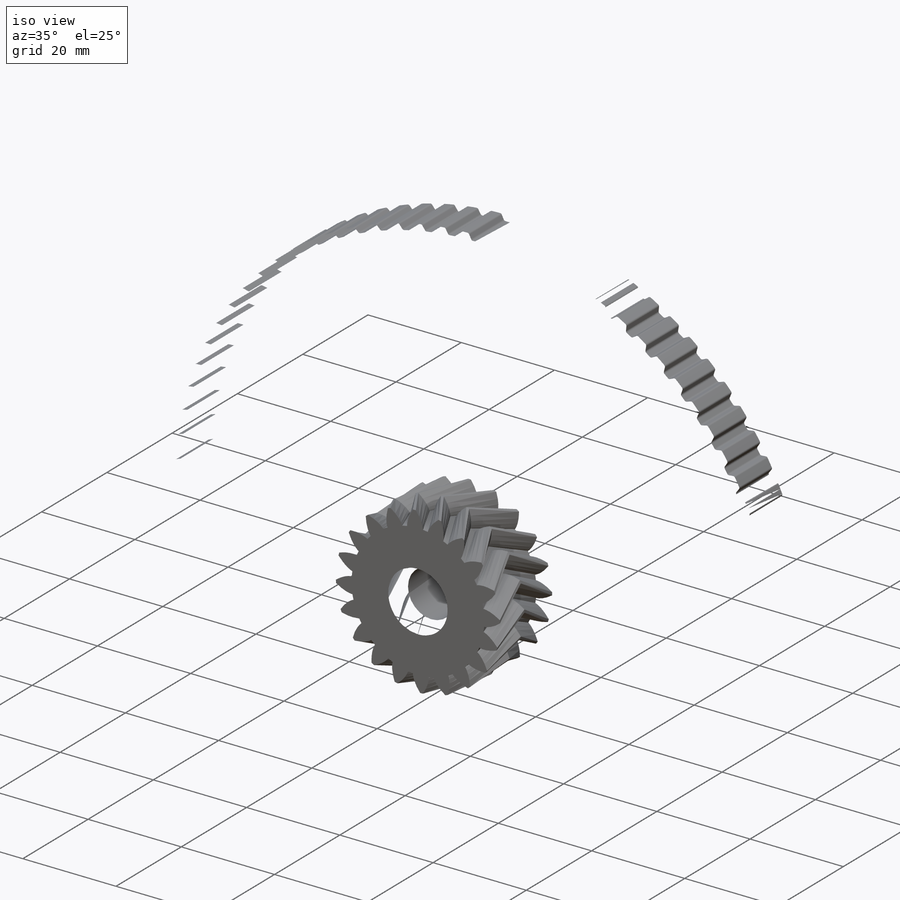
[diagram: iso view]
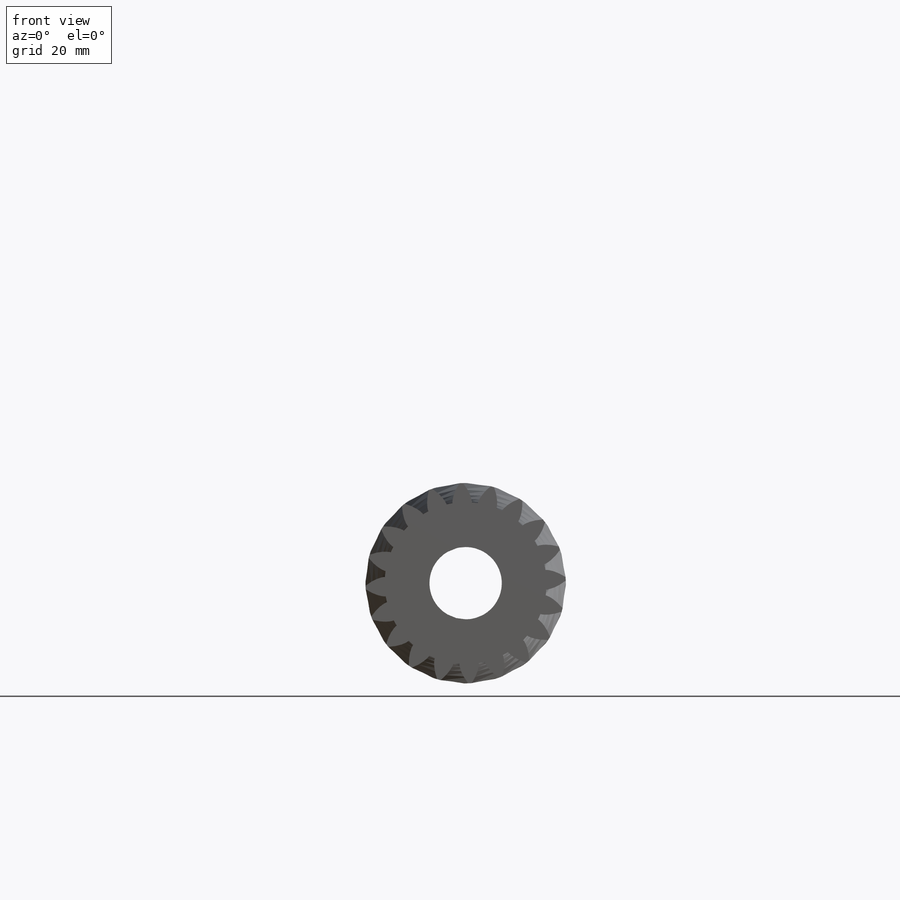
[diagram: front view]
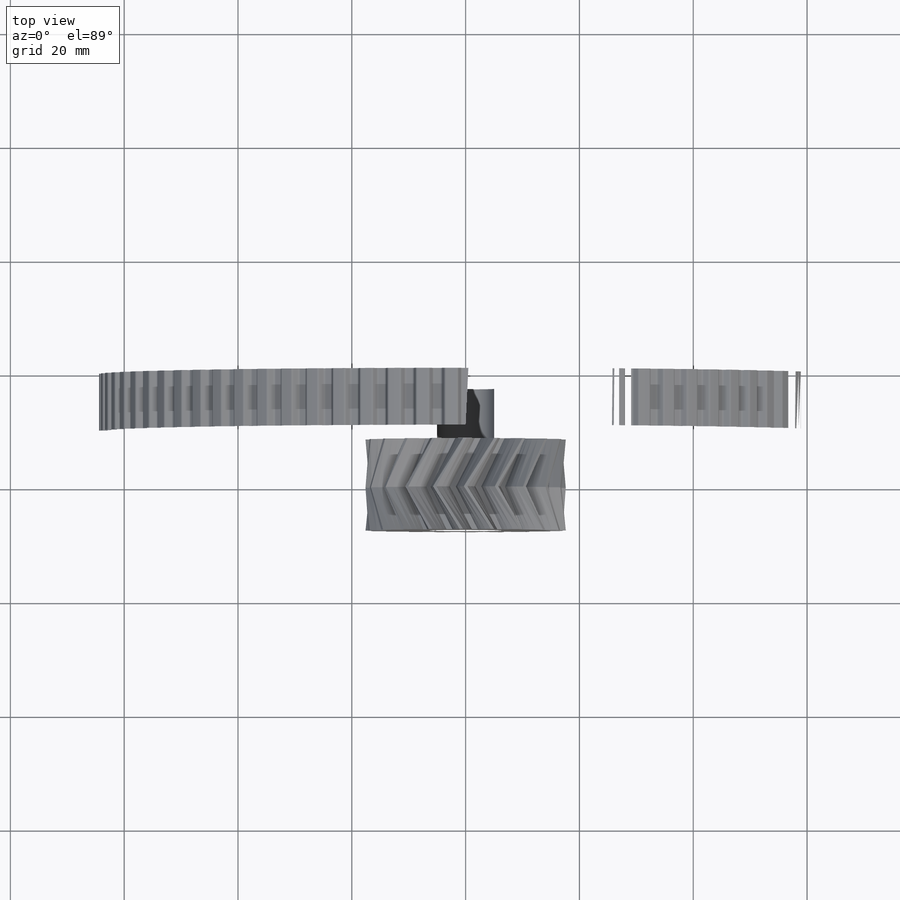
[diagram: top view]
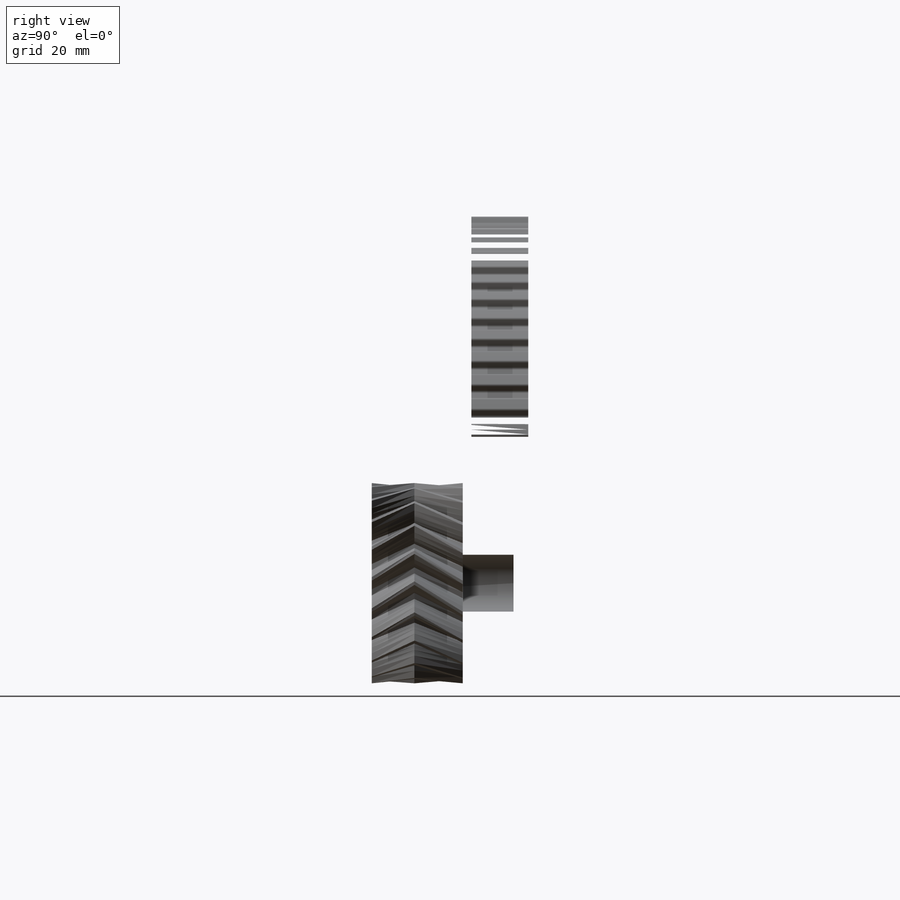
[diagram: right view]
SOLIDWORKS PART (.sldprt)
format: sldprt  version: not decoded by parser v0  size: 11,073,536 bytes
history: native  units: mm
features: sketch x7, cut_extrude x5, extrude x2, fillet x2, material x1, move_body x1, boolean_combine x1, pattern_circular x1, chamfer x1 + 2 further entries (+23 scaffold rows collapsed; 6 parser-record rows omitted)
feature tree (52):
  scaffold x23  (default folders/planes/origin — collapsed)
  material  "Material <not specified>"
  "Pulley XL 72T"
  parser-record x6  (decoder bookkeeping rows leaked as tree rows — omitted from the tree; the rows remain in map.json)
  sketch  "Sketch1"  dims[D1=132.0mm]
  extrude  "Boss-Extrude1"  Depth=1.5mm
  sketch  "Sketch2"
  extrude  "Boss-Extrude2"  Depth=1.5mm
  "Raw Gear 20T Extended"
  move_body  "Body-Move/Copy7"
  boolean_combine  "Combine3"
  sketch  "Sketch7"  dims[c1.D1=33.0mm c1.D4=~54.380763mm c1.D2=10.0mm c1.D3=10.0mm c2.D4=10.0mm c2.D5=~33.847624mm c3.D5=60.0deg]
  cut_extrude  "Cut-Extrude1"  [1 undecoded]
  sketch  "Sketch8"  dims[D2=8.0mm D1=32.0mm D3=16.0mm]
  cut_extrude  "Cut-Extrude2"  [1 undecoded]
  fillet  "Fillet4"  Radius=5mm
  fillet  "Fillet5"  Radius=5mm
  pattern_circular  "CirPattern2"  Count=6 Angle=360deg
  sketch  "Sketch9"  dims[D1=10.0mm]
  cut_extrude  "Cut-Extrude3"  [1 undecoded]
  sketch  "Sketch10"  dims[D1=12.7mm]
  cut_extrude  "Cut-Extrude4"  Depth=4.1mm
  sketch  "Sketch11"
  cut_extrude  "Cut-Extrude5"  Depth=4.1mm
  chamfer  "Chamfer1"  Distance=2.5mm
decode coverage: 13 of 20 modeling features carry decoded parameters; 2 rows unclassified (native names shown)
note: ~ marks probable driven/reference dimensions
note: 3 parameter values undecoded
summary: no parameter record found for 3 features
note: suppression state not decoded; provenance and decode notes live in map.json
